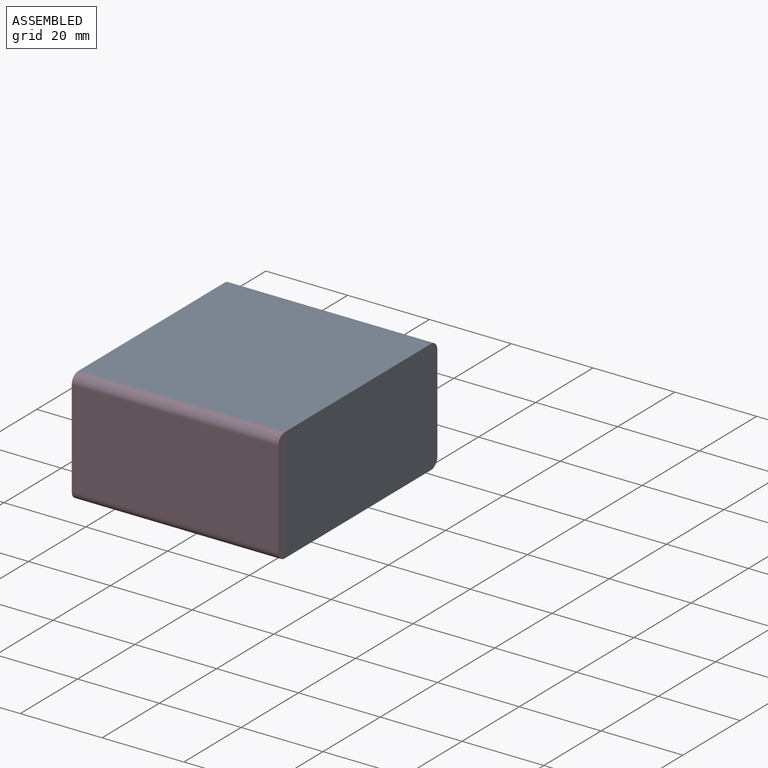
[diagram: assembled view]
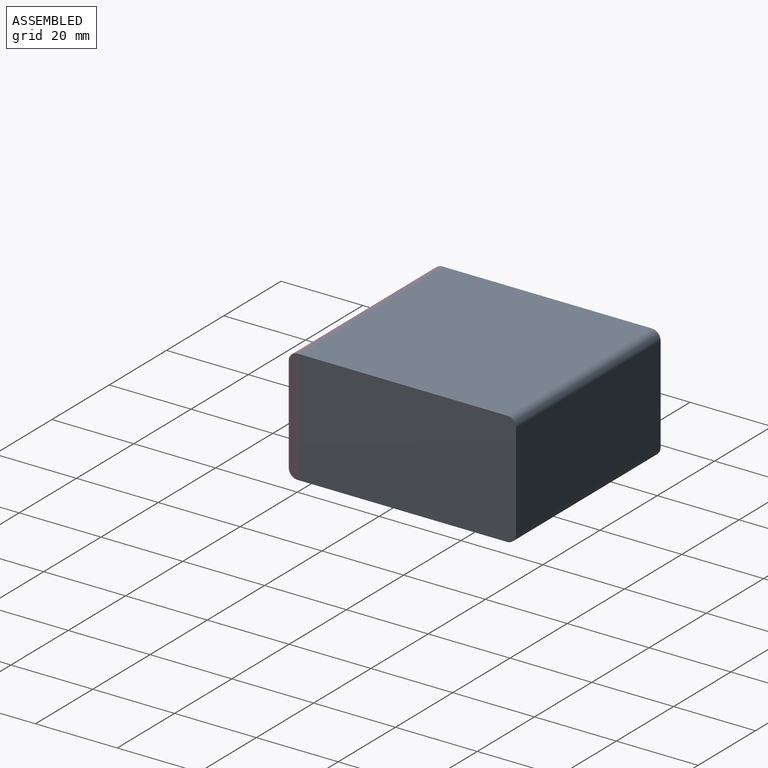
[diagram: assembled view, second angle]
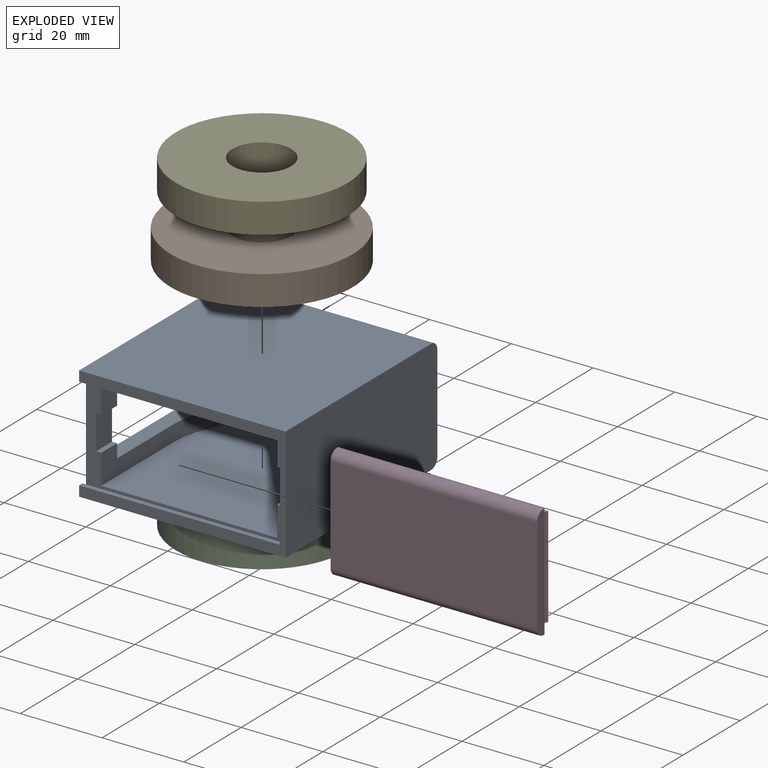
[diagram: exploded view]
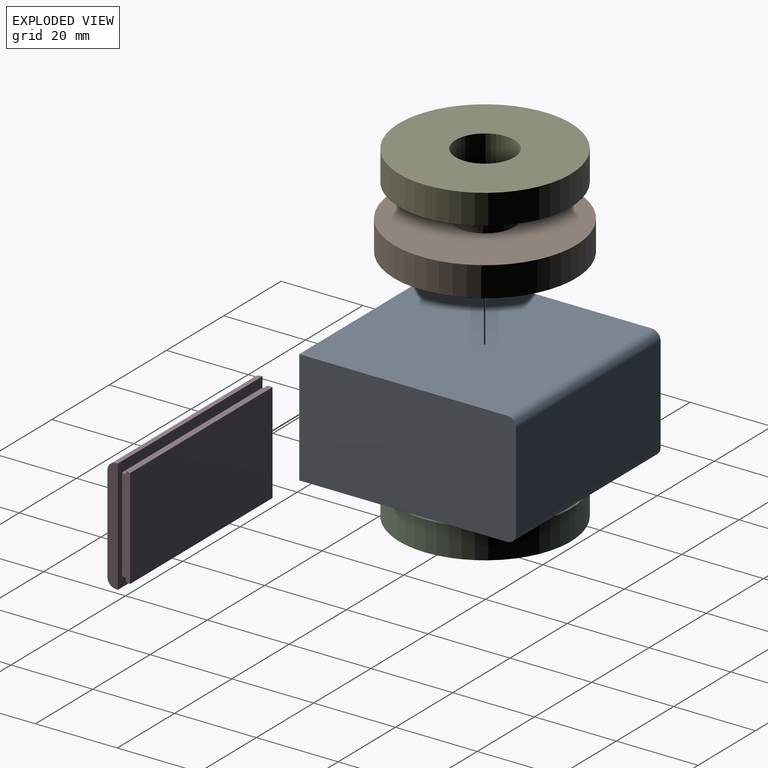
[diagram: exploded view, second angle]
ASSEMBLY  parts=5 mates=4
PART A: 39 faces, bbox 50.6x53.1x28 mm
  f0: plane 8.3x5.48mm, normal (1,0,0), area 45.5mm2, adj f3,f4,f6,f38
  f1: plane 25.32x7.3mm, normal (1,0,0), area 118.4mm2, adj f2,f4,f6,f18,f37,f38
  f2: cylinder r=21.5mm len=43mm, axis (0,0,1), area 436.7mm2, adj f1,f15,f18,f20,f35,f37
  f3: plane 5.48x1.25mm, normal (0,0,-1), area 6.9mm2, adj f0,f6,f19,f38
  f4: plane 5.48x1.25mm, normal (0,0,1), area 6.9mm2, adj f0,f1,f6,f38
  f5: plane 53x27.9mm, normal (-1,0,0), area 892.1mm2, adj f6,f11,f12,f23,f24,f25,f27,f28
  f6: plane 49.82x25.38mm, normal (0,-1,0), area 213mm2, adj f0,f1,f3,f4,f5,f7,f10,f14
  f7: plane 49.33x1.25mm, normal (0,0,1), area 61.5mm2, adj f6,f8,f28,f34
  f8: plane 49x0.86mm, normal (0,1,0), area 42mm2, adj f7,f11,f29,f34
  f9: plane 49x0.75mm, normal (0,1,0), area 36.7mm2, adj f10,f12,f31,f34
  f10: plane 49.33x1.25mm, normal (0,0,-1), area 61.5mm2, adj f6,f9,f30,f34
  f11: plane 49.49x1.28mm, normal (0,0,1), area 58.1mm2, adj f5,f8,f27,f29,f34
  f12: plane 49.49x1.28mm, normal (0,0,-1), area 58.1mm2, adj f5,f9,f27,f31,f34
  f13: cylinder r=22.75mm len=39.71mm, axis (0,0,-1), area 455.5mm2, adj f14,f15,f21,f35
  f14: plane 48.07x39.71mm, normal (0,0,-1), area 97.6mm2, adj f6,f13,f16,f21,f22,f35
  f15: plane 48.07x39.71mm, normal (0,0,1), area 97.6mm2, adj f2,f6,f13,f20,f21,f35
  f16: cylinder r=21.5mm len=43mm, axis (0,0,1), area 436.7mm2, adj f14,f17,f19,f22,f35,f36
  f17: plane 46.82x43mm, normal (0,0,-1), area 1814.8mm2, adj f6,f16,f19,f22
  f18: plane 46.82x43mm, normal (0,0,1), area 1814.8mm2, adj f1,f2,f6,f20
  f19: plane 25.32x7.3mm, normal (1,0,0), area 118.4mm2, adj f3,f6,f16,f17,f36,f38
  f20: plane 25.32x7.3mm, normal (-1,0,0), area 184.8mm2, adj f2,f6,f15,f18
  f21: plane 25.32x8.3mm, normal (-1,0,0), area 210.1mm2, adj f6,f13,f14,f15
  f22: plane 25.32x7.3mm, normal (-1,0,0), area 184.8mm2, adj f6,f14,f16,f17
  f23: plane 50.83x50.5mm, normal (0,0,1), area 2566.8mm2, adj f5,f26,f27,f32
  f24: plane 50.5x23.55mm, normal (0,1,0), area 1189.5mm2, adj f5,f26,f32,f33
  f25: plane 50.83x50.5mm, normal (0,0,-1), area 2566.8mm2, adj f5,f26,f27,f33
  f26: plane 53x27.9mm, normal (1,0,0), area 1476.7mm2, adj f23,f24,f25,f27,f32,f33
  f27: plane 50.5x27.9mm, normal (0,-1,0), area 285.3mm2, adj f5,f11,f12,f23,f25,f26,f34
  f28: bspline ~1.8x0.39mm, area 1mm2, adj f5,f6,f7,f29
  f29: bspline ~1.33x0.39mm, area 0.7mm2, adj f5,f8,f11,f28
  f30: bspline ~1.8x0.39mm, area 1mm2, adj f5,f6,f10,f31
  f31: bspline ~1.21x0.39mm, area 0.7mm2, adj f5,f9,f12,f30
  f32: cylinder r=2.17mm len=50.5mm, axis (1,0,0), area 172.4mm2, adj f5,f23,f24,f26
  f33: cylinder r=2.17mm len=50.5mm, axis (1,0,0), area 172.4mm2, adj f5,f24,f25,f26
  f34: plane 24.51x2.43mm, normal (-0.97,0.26,0), area 59.7mm2, adj f6,f7,f8,f9,f10,f11,f12,f27
  f35: plane 15x10.01mm, normal (0,-1,0), area 135.9mm2, adj f2,f5,f13,f14,f15,f16,f36,f37
  f36: plane 35x10.01mm, normal (0,0,-1), area 160.8mm2, adj f5,f16,f19,f35,f38
  f37: plane 35x10.01mm, normal (0,0,1), area 160.8mm2, adj f1,f2,f5,f35,f38
  f38: plane 15x3.75mm, normal (0,1,0), area 45.9mm2, adj f0,f1,f3,f4,f5,f19,f36,f37
PART B: 8 faces, bbox 44.5x44.5x21.3 mm
  f0: cylinder r=22.25mm len=44.5mm, axis (0,0,-1), area 1020.5mm2, adj f2,f3
  f1: cylinder r=6.28mm len=21.3mm, axis (0,0,-1), area 839.8mm2, adj f5,f7
  f2: plane 44.5x44.5mm, normal (0,0,1), area 1393.6mm2, adj f0,f6
  f3: plane 44.5x44.5mm, normal (0,0,-1), area 1393.6mm2, adj f0,f4
  f4: cylinder r=7.17mm len=14.35mm, axis (0,0,1), area 315.6mm2, adj f3,f5
  f5: plane 14.35x14.35mm, normal (0,0,-1), area 38mm2, adj f1,f4
  f6: cylinder r=7.17mm len=14.35mm, axis (0,0,-1), area 315.6mm2, adj f2,f7
  f7: plane 14.35x14.35mm, normal (0,0,1), area 38mm2, adj f1,f6
PART C: 4 faces, bbox 42x42x7.3 mm
  f0: cylinder r=7.17mm len=14.35mm, axis (0,0,1), area 329.1mm2, adj f2,f3
  f1: cylinder r=21mm len=42mm, axis (0,0,1), area 963.2mm2, adj f2,f3
  f2: plane 42x42mm, normal (0,0,-1), area 1223.7mm2, adj f0,f1
  f3: plane 42x42mm, normal (0,0,1), area 1223.7mm2, adj f0,f1
PART D: 16 faces, bbox 50.5x5x27.9 mm
  f0: plane 49.72x24.51mm, normal (0,1,0), area 1218.6mm2, adj f1,f11,f12,f15
  f1: plane 49.72x1.25mm, normal (0,0,-1), area 61.9mm2, adj f0,f4,f12,f15
  f2: plane 49.39x1.18mm, normal (0,0,-1), area 58.1mm2, adj f4,f5,f12,f15
  f3: plane 27.9x2.57mm, normal (1,0,0), area 69.6mm2, adj f5,f6,f7,f8,f13,f14
  f4: plane 49.39x0.86mm, normal (0,-1,0), area 42.4mm2, adj f1,f2,f12,f15
  f5: plane 50.5x27.9mm, normal (0,1,0), area 285.3mm2, adj f2,f3,f6,f8,f9,f12,f15
  f6: plane 50.5x0.4mm, normal (0,0,-1), area 20mm2, adj f3,f5,f12,f13
  f7: plane 50.5x23.55mm, normal (0,-1,0), area 1189.5mm2, adj f3,f12,f13,f14
  f8: plane 50.5x0.4mm, normal (0,0,1), area 20mm2, adj f3,f5,f12,f14
  f9: plane 49.39x1.18mm, normal (0,0,1), area 58.1mm2, adj f5,f10,f12,f15
  f10: plane 49.39x0.75mm, normal (0,-1,0), area 37mm2, adj f9,f11,f12,f15
  f11: plane 49.72x1.25mm, normal (0,0,1), area 61.9mm2, adj f0,f10,f12,f15
  f12: plane 27.9x5mm, normal (-1,0,0), area 127.3mm2, adj f0,f1,f2,f4,f5,f6,f7,f8
  f13: cylinder r=2.17mm len=50.5mm, axis (-1,0,0), area 172.4mm2, adj f3,f6,f7,f12
  f14: cylinder r=2.17mm len=50.5mm, axis (1,0,0), area 172.4mm2, adj f3,f7,f8,f12
  f15: plane 24.51x2.43mm, normal (0.97,-0.26,0), area 59.7mm2, adj f0,f1,f2,f4,f5,f9,f10,f11
PART E: 4 faces, bbox 42x42x7.3 mm
  f0: cylinder r=7.17mm len=14.35mm, axis (0,0,1), area 329.1mm2, adj f2,f3
  f1: cylinder r=21mm len=42mm, axis (0,0,1), area 963.2mm2, adj f2,f3
  f2: plane 42x42mm, normal (0,0,-1), area 1223.7mm2, adj f0,f1
  f3: plane 42x42mm, normal (0,0,1), area 1223.7mm2, adj f0,f1
PLACE A t=(-10.12,-1.19,1.45)mm fixed
PLACE B rot(axis=(0,0,-1),19.4deg) t=(-10.12,-1.19,1.95)mm
PLACE C t=(-10.12,-1.19,1.95)mm
PLACE D t=(-10.12,-1.19,1.45)mm
PLACE E t=(-10.12,-1.19,1.95)mm
MATE slider D.f12 <-> A.f5  axis (-1,0,0) through (-35.37,-26.51,5.05)mm
MATE revolute B.f0 <-> E.f0  axis (0,0,1) through (-10.12,-1.19,9.25)mm
MATE revolute C.f0 <-> B.f0  axis (0,0,1) through (-10.12,-1.19,1.95)mm
MATE revolute E.f0 <-> A.f2  axis (0,0,1) through (-10.12,-1.19,16.55)mm
